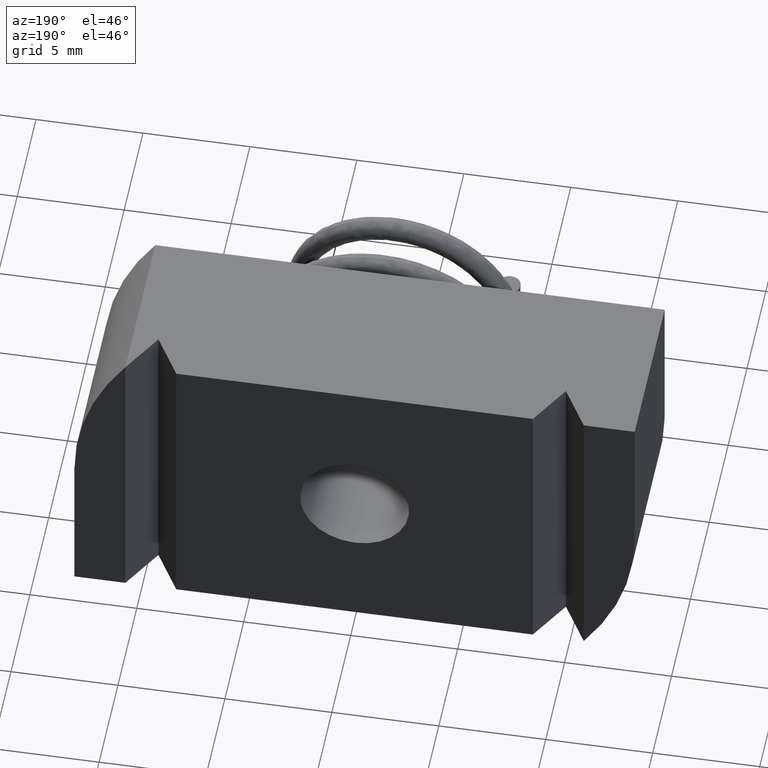
[diagram: clean part render]
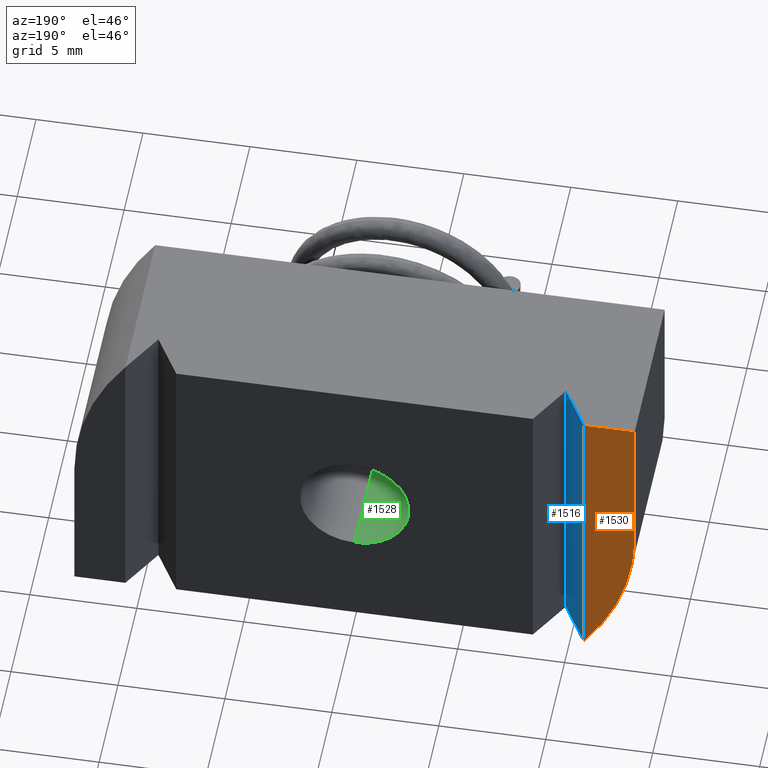
[diagram: same view with three faces highlighted in distinct colors, each labeled with its STEP entity id]
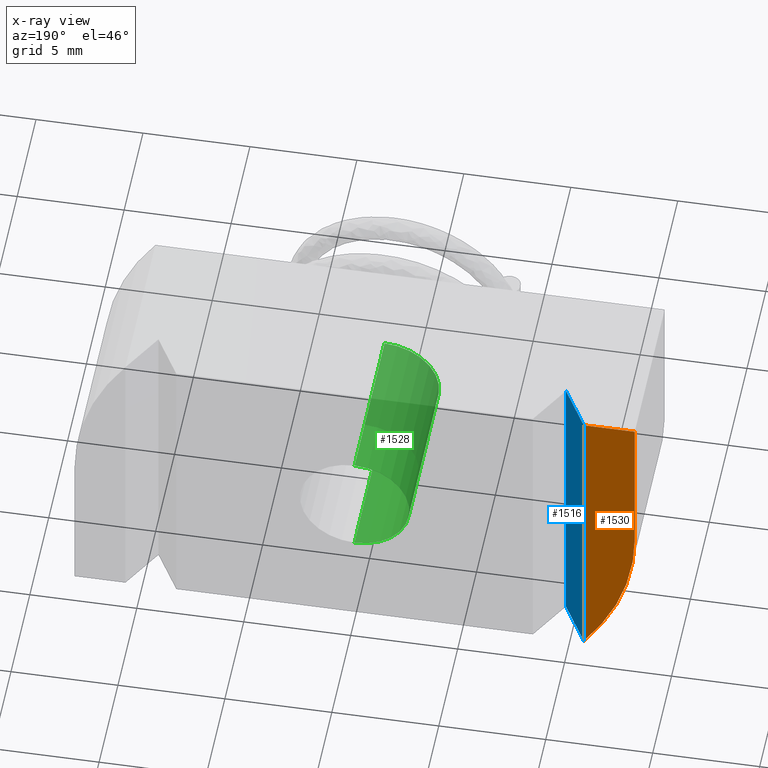
[diagram: x-ray of the same camera — body ghosted, the three highlighted faces saturated]
A machine part, auxiliary view with three faces highlighted in distinct colors.
The next image is the same camera in x-ray (body ghosted, the three faces saturated) — at least one of them is partly hidden behind the body in this view.
Their STEP definitions:

[orange] entity #1530 — the highlighted planar face has unit normal (0, -1, 0).
#13 = CARTESIAN_POINT ( 'NONE',  ( -0.04687499999999886900, 0.1562500000000000000, 0.0000000000000000000 ) ) ;
#14 = DIRECTION ( 'NONE',  ( -0.0000000000000000000, -1.000000000000000000, 0.0000000000000000000 ) ) ;
#22 = DIRECTION ( 'NONE',  ( 1.000000000000000000, 0.0000000000000000000, 0.0000000000000000000 ) ) ;
#35 = CARTESIAN_POINT ( 'NONE',  ( -0.5156250000000000000, 0.1562500000000000000, 0.2812500000000000000 ) ) ;
#36 = CARTESIAN_POINT ( 'NONE',  ( -0.4218750000000001100, 0.1562500000000000000, -0.2812500000000000000 ) ) ;
#42 = DIRECTION ( 'NONE',  ( -0.0000000000000000000, -0.0000000000000000000, -1.000000000000000000 ) ) ;
#45 = DIRECTION ( 'NONE',  ( -0.0000000000000000000, -0.0000000000000000000, 1.000000000000000000 ) ) ;
#50 = CARTESIAN_POINT ( 'NONE',  ( -0.4218750000000001100, 0.1562500000000000000, 0.2812500000000000000 ) ) ;
#69 = DIRECTION ( 'NONE',  ( 0.0000000000000000000, 0.0000000000000000000, -1.000000000000000000 ) ) ;
#70 = CARTESIAN_POINT ( 'NONE',  ( -0.5156250000000000000, 0.1562500000000000000, 0.2812500000000000000 ) ) ;
#78 = CARTESIAN_POINT ( 'NONE',  ( -0.5156250000000000000, 0.1562500000000000000, 0.2812500000000000000 ) ) ;
#83 = CARTESIAN_POINT ( 'NONE',  ( -0.4218750000000001100, 0.1562500000000000000, 0.2812500000000000000 ) ) ;
#91 = CARTESIAN_POINT ( 'NONE',  ( -0.5156250000000000000, 0.1562500000000000000, 0.0000000000000000000 ) ) ;
#527 = CARTESIAN_POINT ( 'NONE',  ( 0.5156249999999998900, 0.1562500000000000000, -0.2812500000000000000 ) ) ;
#528 = PLANE ( 'NONE',  #1656 ) ;
#533 = DIRECTION ( 'NONE',  ( 0.0000000000000000000, -1.000000000000000000, 0.0000000000000000000 ) ) ;
#534 = DIRECTION ( 'NONE',  ( 0.0000000000000000000, -0.0000000000000000000, -1.000000000000000000 ) ) ;
#780 = EDGE_LOOP ( 'NONE', ( #917, #891, #892, #815 ) ) ;
#815 = ORIENTED_EDGE ( 'NONE', *, *, #1367, .T. ) ;
#871 = VECTOR ( 'NONE', #42, 39.37007874015748100 ) ;
#876 = LINE ( 'NONE', #70, #878 ) ;
#877 = CIRCLE ( 'NONE', #952, 0.4687500000000011100 ) ;
#878 = VECTOR ( 'NONE', #22, 39.37007874015748100 ) ;
#891 = ORIENTED_EDGE ( 'NONE', *, *, #1366, .F. ) ;
#892 = ORIENTED_EDGE ( 'NONE', *, *, #1362, .T. ) ;
#917 = ORIENTED_EDGE ( 'NONE', *, *, #1364, .T. ) ;
#932 = FACE_OUTER_BOUND ( 'NONE', #780, .T. ) ;
#952 = AXIS2_PLACEMENT_3D ( 'NONE', #13, #14, #69 ) ;
#1362 = EDGE_CURVE ( 'NONE', #1485, #1447, #1573, .T. ) ;
#1364 = EDGE_CURVE ( 'NONE', #1467, #1438, #1570, .T. ) ;
#1366 = EDGE_CURVE ( 'NONE', #1485, #1438, #877, .T. ) ;
#1367 = EDGE_CURVE ( 'NONE', #1447, #1467, #876, .T. ) ;
#1438 = VERTEX_POINT ( 'NONE', #36 ) ;
#1447 = VERTEX_POINT ( 'NONE', #78 ) ;
#1467 = VERTEX_POINT ( 'NONE', #83 ) ;
#1485 = VERTEX_POINT ( 'NONE', #91 ) ;
#1530 = ADVANCED_FACE ( 'NONE', ( #932 ), #528, .F. ) ;
#1570 = LINE ( 'NONE', #50, #871 ) ;
#1573 = LINE ( 'NONE', #35, #1638 ) ;
#1638 = VECTOR ( 'NONE', #45, 39.37007874015748100 ) ;
#1656 = AXIS2_PLACEMENT_3D ( 'NONE', #527, #533, #534 ) ;

[blue] entity #1516 — the highlighted planar face has unit normal (-0.8614, -0.5079, 0).
#36 = CARTESIAN_POINT ( 'NONE',  ( -0.4218750000000001100, 0.1562500000000000000, -0.2812500000000000000 ) ) ;
#42 = DIRECTION ( 'NONE',  ( -0.0000000000000000000, -0.0000000000000000000, -1.000000000000000000 ) ) ;
#50 = CARTESIAN_POINT ( 'NONE',  ( -0.4218750000000001100, 0.1562500000000000000, 0.2812500000000000000 ) ) ;
#65 = DIRECTION ( 'NONE',  ( -0.0000000000000000000, -0.0000000000000000000, -1.000000000000000000 ) ) ;
#71 = CARTESIAN_POINT ( 'NONE',  ( -0.3750000000000000600, 0.07674999999999998500, 0.2812500000000000000 ) ) ;
#83 = CARTESIAN_POINT ( 'NONE',  ( -0.4218750000000001100, 0.1562500000000000000, 0.2812500000000000000 ) ) ;
#89 = CARTESIAN_POINT ( 'NONE',  ( -0.3750000000000001100, 0.07674999999999998500, 0.2812500000000000000 ) ) ;
#98 = CARTESIAN_POINT ( 'NONE',  ( -0.3750000000000000600, 0.07674999999999998500, 0.2812500000000000000 ) ) ;
#99 = PLANE ( 'NONE',  #951 ) ;
#105 = DIRECTION ( 'NONE',  ( -0.8614114877297920400, -0.5079077168218124600, 0.0000000000000000000 ) ) ;
#106 = DIRECTION ( 'NONE',  ( 0.5079077168218123500, -0.8614114877297919200, 0.0000000000000000000 ) ) ;
#611 = CARTESIAN_POINT ( 'NONE',  ( -0.3750000000000000600, 0.07674999999999998500, -0.2812500000000000000 ) ) ;
#612 = DIRECTION ( 'NONE',  ( -0.5079077168218123500, 0.8614114877297919200, 0.0000000000000000000 ) ) ;
#738 = CARTESIAN_POINT ( 'NONE',  ( -0.3750000000000000600, 0.07674999999999998500, 0.2812500000000000000 ) ) ;
#739 = DIRECTION ( 'NONE',  ( -0.5079077168218123500, 0.8614114877297919200, 0.0000000000000000000 ) ) ;
#773 = EDGE_LOOP ( 'NONE', ( #922, #812, #805, #843 ) ) ;
#805 = ORIENTED_EDGE ( 'NONE', *, *, #1647, .F. ) ;
#812 = ORIENTED_EDGE ( 'NONE', *, *, #1364, .F. ) ;
#843 = ORIENTED_EDGE ( 'NONE', *, *, #1371, .T. ) ;
#861 = FACE_OUTER_BOUND ( 'NONE', #773, .T. ) ;
#871 = VECTOR ( 'NONE', #42, 39.37007874015748100 ) ;
#875 = LINE ( 'NONE', #71, #884 ) ;
#884 = VECTOR ( 'NONE', #65, 39.37007874015748100 ) ;
#922 = ORIENTED_EDGE ( 'NONE', *, *, #1581, .T. ) ;
#951 = AXIS2_PLACEMENT_3D ( 'NONE', #98, #105, #106 ) ;
#1364 = EDGE_CURVE ( 'NONE', #1467, #1438, #1570, .T. ) ;
#1371 = EDGE_CURVE ( 'NONE', #1483, #1434, #875, .T. ) ;
#1434 = VERTEX_POINT ( 'NONE', #1512 ) ;
#1438 = VERTEX_POINT ( 'NONE', #36 ) ;
#1467 = VERTEX_POINT ( 'NONE', #83 ) ;
#1483 = VERTEX_POINT ( 'NONE', #89 ) ;
#1512 = CARTESIAN_POINT ( 'NONE',  ( -0.3750000000000000600, 0.07674999999999998500, -0.2812500000000000000 ) ) ;
#1516 = ADVANCED_FACE ( 'NONE', ( #861 ), #99, .F. ) ;
#1570 = LINE ( 'NONE', #50, #871 ) ;
#1581 = EDGE_CURVE ( 'NONE', #1434, #1438, #1597, .T. ) ;
#1597 = LINE ( 'NONE', #611, #1600 ) ;
#1600 = VECTOR ( 'NONE', #612, 39.37007874015748100 ) ;
#1626 = LINE ( 'NONE', #738, #1627 ) ;
#1627 = VECTOR ( 'NONE', #739, 39.37007874015748100 ) ;
#1647 = EDGE_CURVE ( 'NONE', #1483, #1467, #1626, .T. ) ;

[green] entity #1528 — the highlighted cylindrical surface (partial cylindrical patch) has radius 2.5527 mm, axis along (-0, 1, -0).
#76 = CARTESIAN_POINT ( 'NONE',  ( 1.230770033143084800E-017, 0.1562500000000000300, -0.1004999999999995900 ) ) ;
#80 = CARTESIAN_POINT ( 'NONE',  ( 0.0000000000000000000, 0.1562500000000000300, 0.1004999999999995900 ) ) ;
#86 = CARTESIAN_POINT ( 'NONE',  ( 1.230770033143084000E-017, -0.1562500000000000000, -0.1004999999999995200 ) ) ;
#87 = CARTESIAN_POINT ( 'NONE',  ( 0.0000000000000000000, -0.1562500000000000000, 0.1004999999999995200 ) ) ;
#511 = DIRECTION ( 'NONE',  ( 0.0000000000000000000, 0.0000000000000000000, 1.000000000000000000 ) ) ;
#520 = CARTESIAN_POINT ( 'NONE',  ( 0.0000000000000000000, 0.1562500000000000000, 0.0000000000000000000 ) ) ;
#521 = DIRECTION ( 'NONE',  ( -0.0000000000000000000, 1.000000000000000000, -0.0000000000000000000 ) ) ;
#558 = CARTESIAN_POINT ( 'NONE',  ( 0.0000000000000000000, -0.1562500000000000000, 0.0000000000000000000 ) ) ;
#600 = CARTESIAN_POINT ( 'NONE',  ( 0.0000000000000000000, 0.1562500000000000000, 0.1004999999999995200 ) ) ;
#601 = DIRECTION ( 'NONE',  ( -0.0000000000000000000, 1.000000000000000000, -0.0000000000000000000 ) ) ;
#602 = DIRECTION ( 'NONE',  ( 0.0000000000000000000, -1.000000000000000000, 0.0000000000000000000 ) ) ;
#603 = DIRECTION ( 'NONE',  ( 0.0000000000000000000, 0.0000000000000000000, -1.000000000000000000 ) ) ;
#622 = CARTESIAN_POINT ( 'NONE',  ( 1.230770033143084000E-017, 0.1562500000000000000, -0.1004999999999995200 ) ) ;
#623 = DIRECTION ( 'NONE',  ( -0.0000000000000000000, 1.000000000000000000, -0.0000000000000000000 ) ) ;
#630 = CARTESIAN_POINT ( 'NONE',  ( 0.0000000000000000000, 0.1562500000000000300, 0.0000000000000000000 ) ) ;
#728 = DIRECTION ( 'NONE',  ( -0.0000000000000000000, 1.000000000000000000, -0.0000000000000000000 ) ) ;
#729 = DIRECTION ( 'NONE',  ( 0.0000000000000000000, 0.0000000000000000000, 1.000000000000000000 ) ) ;
#783 = EDGE_LOOP ( 'NONE', ( #920, #897, #910, #1635 ) ) ;
#897 = ORIENTED_EDGE ( 'NONE', *, *, #1586, .T. ) ;
#910 = ORIENTED_EDGE ( 'NONE', *, *, #1590, .T. ) ;
#920 = ORIENTED_EDGE ( 'NONE', *, *, #1577, .T. ) ;
#931 = FACE_OUTER_BOUND ( 'NONE', #783, .T. ) ;
#935 = CYLINDRICAL_SURFACE ( 'NONE', #1654, 0.1004999999999995200 ) ;
#1443 = VERTEX_POINT ( 'NONE', #76 ) ;
#1449 = VERTEX_POINT ( 'NONE', #80 ) ;
#1480 = VERTEX_POINT ( 'NONE', #86 ) ;
#1481 = VERTEX_POINT ( 'NONE', #87 ) ;
#1528 = ADVANCED_FACE ( 'NONE', ( #931 ), #935, .F. ) ;
#1576 = EDGE_CURVE ( 'NONE', #1481, #1449, #1594, .T. ) ;
#1577 = EDGE_CURVE ( 'NONE', #1481, #1480, #1602, .T. ) ;
#1586 = EDGE_CURVE ( 'NONE', #1480, #1443, #1614, .T. ) ;
#1590 = EDGE_CURVE ( 'NONE', #1443, #1449, #1620, .T. ) ;
#1594 = LINE ( 'NONE', #600, #1599 ) ;
#1599 = VECTOR ( 'NONE', #601, 39.37007874015748100 ) ;
#1602 = CIRCLE ( 'NONE', #1650, 0.1004999999999995200 ) ;
#1614 = LINE ( 'NONE', #622, #1615 ) ;
#1615 = VECTOR ( 'NONE', #623, 39.37007874015748100 ) ;
#1620 = CIRCLE ( 'NONE', #1662, 0.1004999999999995900 ) ;
#1635 = ORIENTED_EDGE ( 'NONE', *, *, #1576, .F. ) ;
#1650 = AXIS2_PLACEMENT_3D ( 'NONE', #558, #602, #603 ) ;
#1654 = AXIS2_PLACEMENT_3D ( 'NONE', #520, #521, #511 ) ;
#1662 = AXIS2_PLACEMENT_3D ( 'NONE', #630, #728, #729 ) ;